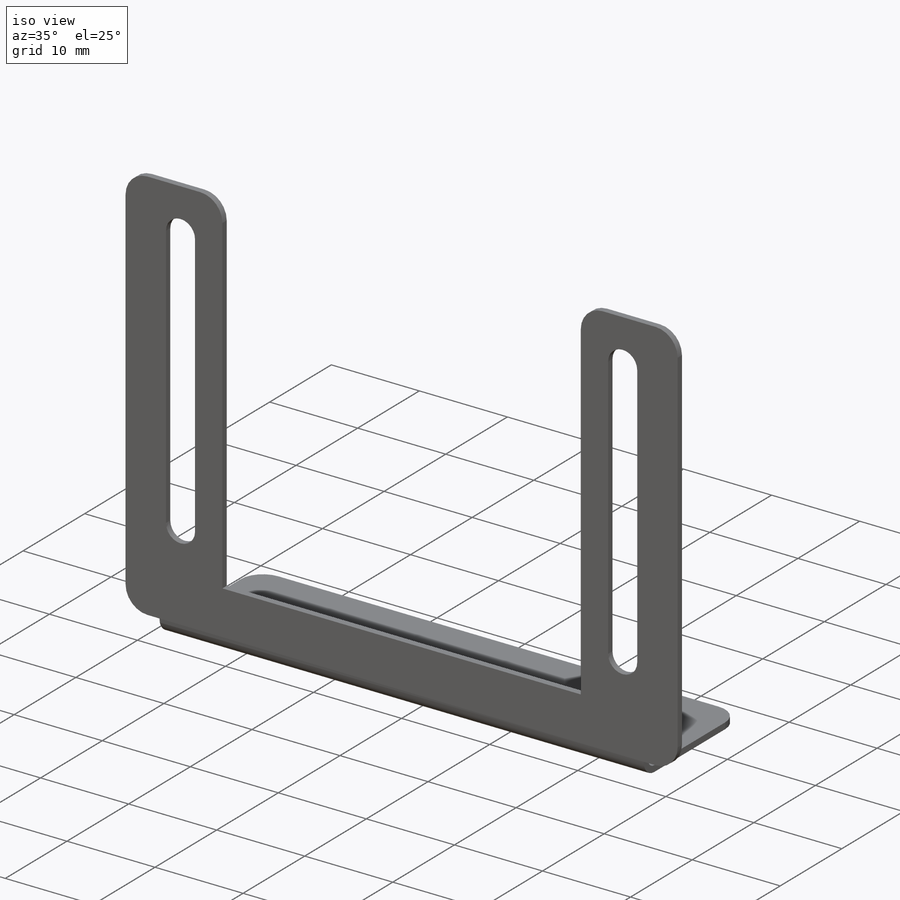
[diagram: iso view]
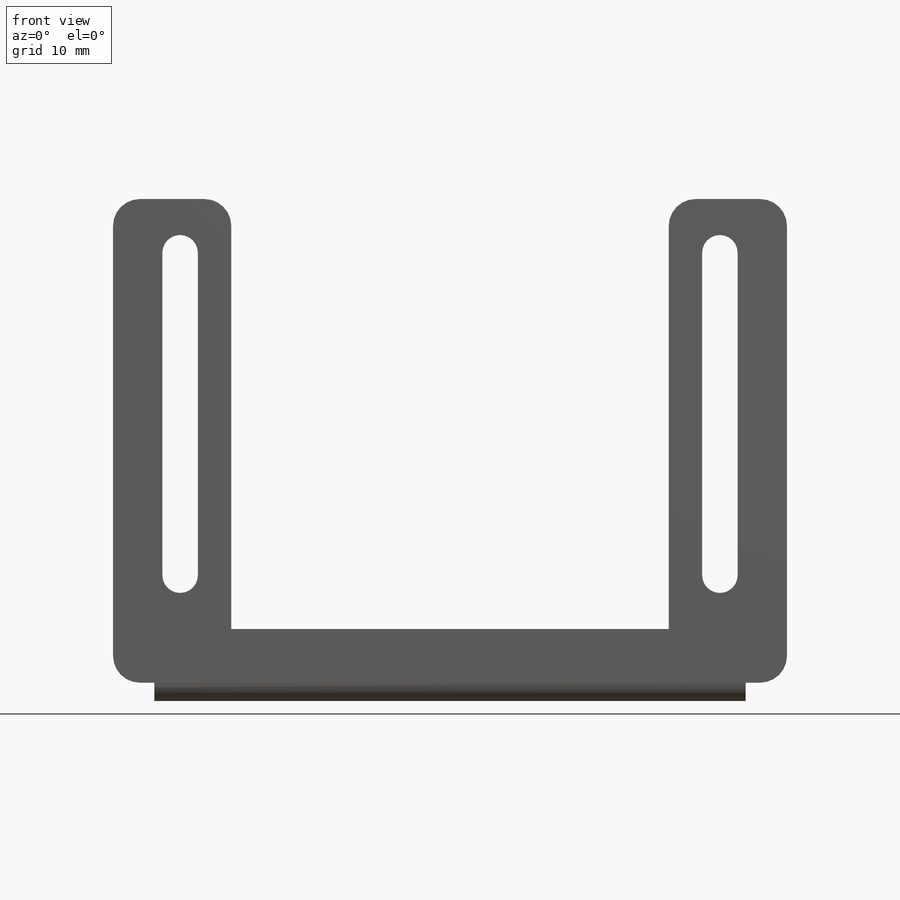
[diagram: front view]
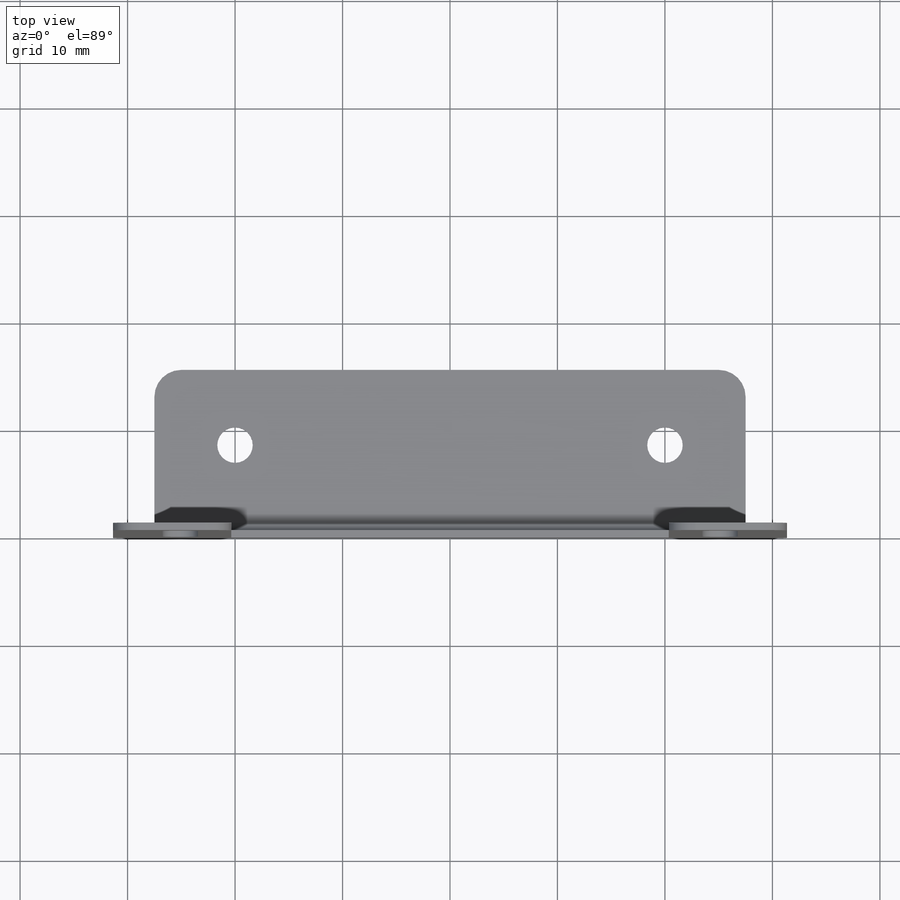
[diagram: top view]
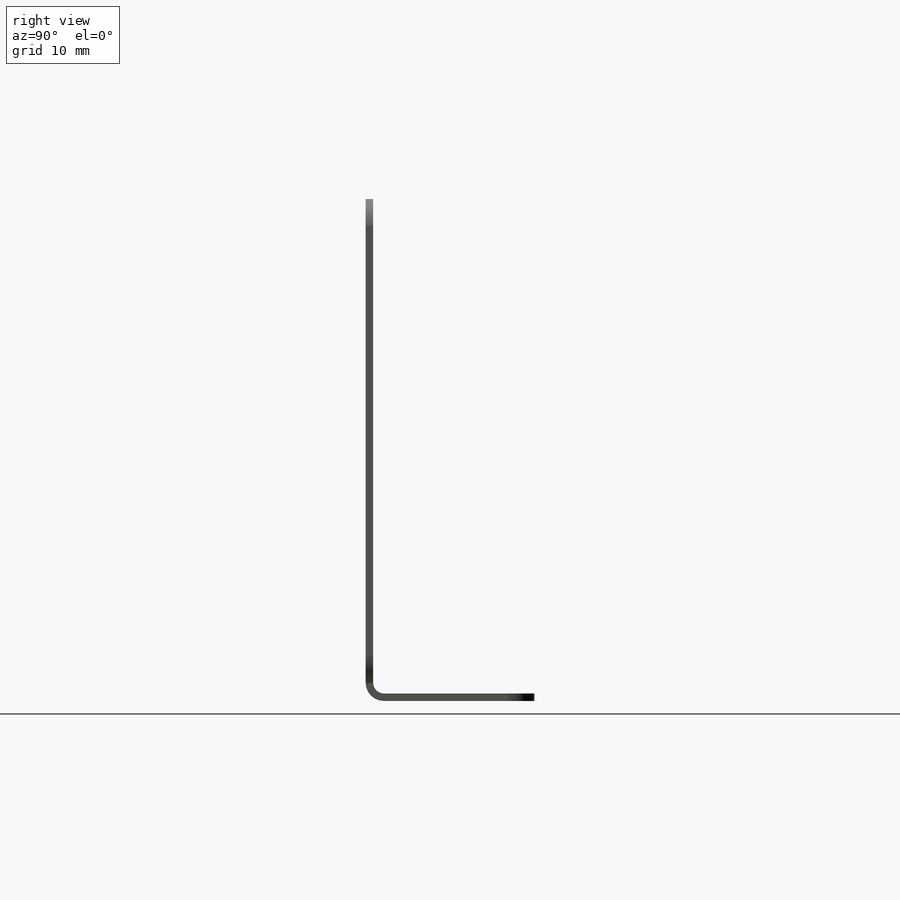
[diagram: right view]
SOLIDWORKS PART (.sldprt)
format: sldprt  version: not decoded by parser v0  size: 272,896 bytes
history: native  units: mm
features: sketch x6, sheet_metal_op x2, cut_extrude x2, material x1 + 1 further entry (+11 scaffold rows collapsed; 1 parser-record rows omitted)
feature tree (24):
  scaffold x11  (default folders/planes/origin — collapsed)
  material  "6061 Alloy"
  sketch  "Sketch2"  dims[c1.D1=60.0mm c1.D2=~100.325346mm c1.D3=11.0mm c1.D4=5.0mm c2.D1=40.0mm c2.D2=40.7mm]
  sheet_metal_op  "Sheet-Metal1"
  sheet_metal_op  "Base-Flange1"
  sketch  "Sketch7"  dims[c1.D1=55.0mm c2.D1=1.0mm c2.D4=90.0deg c2.D5=1.0 c2.D8=0.35mm c2.D9=0.35mm c3.D1=1.0mm c3.D2=500.0mm c3.D3=0.0mm c3.D6=10.0mm c3.D7=15.0mm]
  sketch  "Sketch8"  dims[c1.D1=3.3mm c1.D2=24.0mm c1.D3=50.216mm c1.D4=5.0mm c1.D5=11.0mm c2.D2=5.0mm]
  cut_extrude  "Cut-Extrude1"  Depth=10mm
  sketch  "Sketch9"  dims[D1=3.3mm D2=40.0mm]
  cut_extrude  "Cut-Extrude2"  Depth=2.5mm
  "Flat-Pattern1"
  sketch  "Bend-Lines1"
  sketch  "Bounding-Box1"
  parser-record x1  (decoder bookkeeping rows leaked as tree rows — omitted from the tree; the rows remain in map.json)
decode coverage: 6 of 10 modeling features carry decoded parameters; 1 rows unclassified (native names shown)
note: ~ marks probable driven/reference dimensions
note: suppression state not decoded; provenance and decode notes live in map.json
